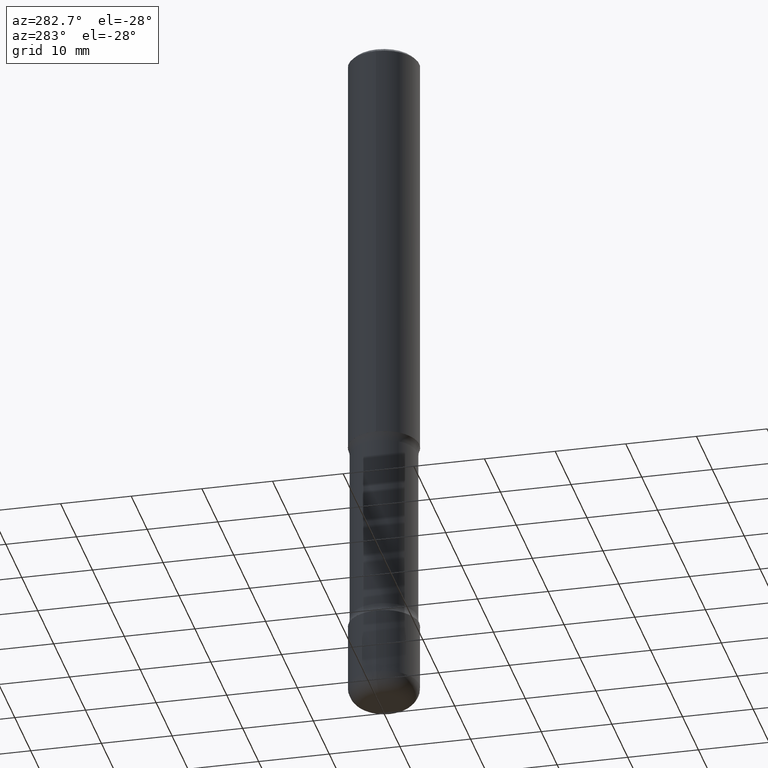
[diagram: clean part render]
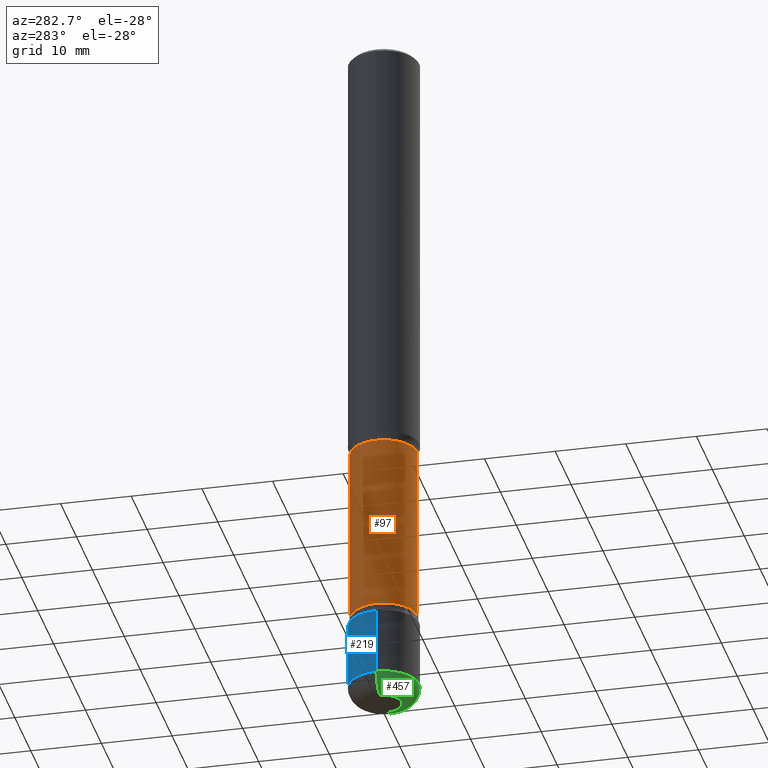
[diagram: same view with three faces highlighted in distinct colors, each labeled with its STEP entity id]
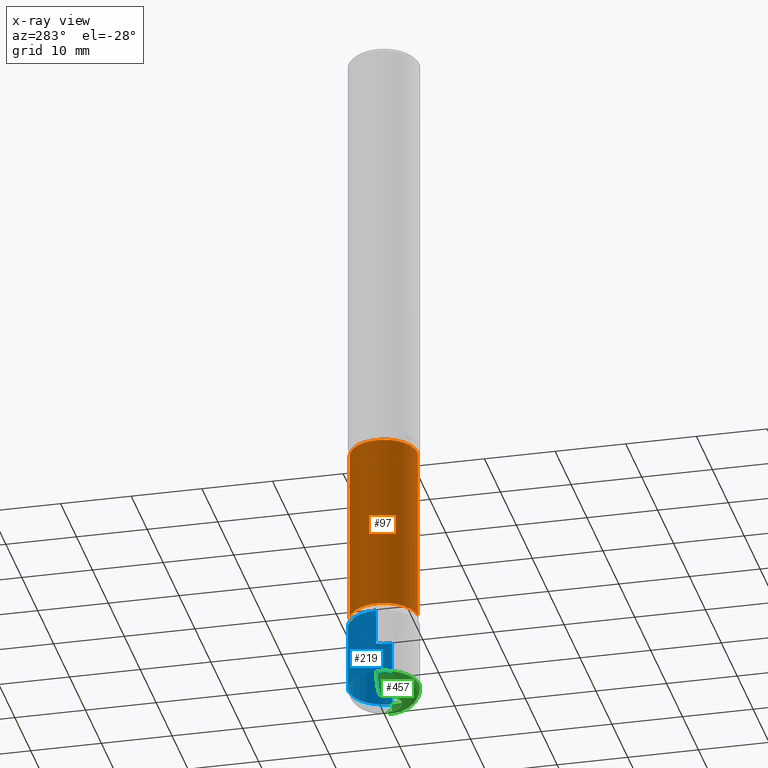
[diagram: x-ray of the same camera — body ghosted, the three highlighted faces saturated]
A machine part, auxiliary view with three faces highlighted in distinct colors.
The next image is the same camera in x-ray (body ghosted, the three faces saturated) — at least one of them is partly hidden behind the body in this view.
Their STEP definitions:

[orange] entity #97 — the highlighted cylindrical surface (edge-blend (fillet) strip) has radius 4.7498 mm, axis along (0, -0, -1).
#6 = CARTESIAN_POINT ( 'NONE',  ( 1.305814020727415620E-15, 0.1869999999999880924, -3.415963825191532521 ) ) ;
#15 = CARTESIAN_POINT ( 'NONE',  ( 1.305814020727390377E-15, 0.1869999999999915341, -2.410836174808471455 ) ) ;
#22 = CARTESIAN_POINT ( 'NONE',  ( -1.316701078222246809E-15, -0.1870000000000088813, -2.410836174808470567 ) ) ;
#33 = EDGE_LOOP ( 'NONE', ( #310, #305, #434, #50 ) ) ;
#50 = ORIENTED_EDGE ( 'NONE', *, *, #304, .F. ) ;
#94 = DIRECTION ( 'NONE',  ( 6.982962677686266711E-15, 1.000000000000000000, -2.921762560068729806E-15 ) ) ;
#97 = ADVANCED_FACE ( 'NONE', ( #282 ), #151, .T. ) ;
#102 = AXIS2_PLACEMENT_3D ( 'NONE', #277, #418, #319 ) ;
#110 = DIRECTION ( 'NONE',  ( 2.620889282446383185E-29, -3.240269232523581650E-15, -1.000000000000000000 ) ) ;
#111 = CARTESIAN_POINT ( 'NONE',  ( 9.710679322936699330E-29, -1.362728943200010467E-14, -3.937000000000001165 ) ) ;
#128 = AXIS2_PLACEMENT_3D ( 'NONE', #186, #110, #94 ) ;
#130 = VERTEX_POINT ( 'NONE', #22 ) ;
#151 = CYLINDRICAL_SURFACE ( 'NONE', #541, 0.1870000000000001106 ) ;
#165 = VERTEX_POINT ( 'NONE', #451 ) ;
#186 = CARTESIAN_POINT ( 'NONE',  ( 8.345101196614320923E-29, -1.193899194573644426E-14, -3.415963825191531633 ) ) ;
#190 = DIRECTION ( 'NONE',  ( 2.620889282446383185E-29, -3.240269232523582044E-15, -1.000000000000000000 ) ) ;
#238 = EDGE_CURVE ( 'NONE', #428, #475, #526, .T. ) ;
#246 = CARTESIAN_POINT ( 'NONE',  ( -1.282913125583180022E-15, -0.1870000000000137386, -3.937000000000000721 ) ) ;
#258 = VECTOR ( 'NONE', #190, 39.37007874015748143 ) ;
#277 = CARTESIAN_POINT ( 'NONE',  ( 5.710772910234841729E-29, -8.682107745441492905E-15, -2.410836174808471011 ) ) ;
#282 = FACE_OUTER_BOUND ( 'NONE', #33, .T. ) ;
#304 = EDGE_CURVE ( 'NONE', #165, #475, #374, .T. ) ;
#305 = ORIENTED_EDGE ( 'NONE', *, *, #394, .T. ) ;
#310 = ORIENTED_EDGE ( 'NONE', *, *, #505, .F. ) ;
#315 = DIRECTION ( 'NONE',  ( 6.982962677686266711E-15, 1.000000000000000000, -2.921762560068729017E-15 ) ) ;
#319 = DIRECTION ( 'NONE',  ( 6.982962677686266711E-15, 1.000000000000000000, -2.921762560068727439E-15 ) ) ;
#320 = CARTESIAN_POINT ( 'NONE',  ( 1.305814020727429623E-15, 0.1869999999999864826, -3.937000000000001609 ) ) ;
#329 = DIRECTION ( 'NONE',  ( 2.620889282446383185E-29, -3.240269232523581650E-15, -1.000000000000000000 ) ) ;
#345 = CIRCLE ( 'NONE', #102, 0.1870000000000002216 ) ;
#369 = DIRECTION ( 'NONE',  ( 2.620889282446383185E-29, -3.240269232523582044E-15, -1.000000000000000000 ) ) ;
#374 = CIRCLE ( 'NONE', #128, 0.1870000000000000551 ) ;
#394 = EDGE_CURVE ( 'NONE', #130, #428, #345, .T. ) ;
#418 = DIRECTION ( 'NONE',  ( 2.620889282446383185E-29, -3.240269232523581650E-15, -1.000000000000000000 ) ) ;
#424 = VECTOR ( 'NONE', #369, 39.37007874015748143 ) ;
#428 = VERTEX_POINT ( 'NONE', #15 ) ;
#434 = ORIENTED_EDGE ( 'NONE', *, *, #238, .T. ) ;
#446 = LINE ( 'NONE', #246, #424 ) ;
#451 = CARTESIAN_POINT ( 'NONE',  ( -1.316701078222217030E-15, -0.1870000000000119900, -3.415963825191531189 ) ) ;
#475 = VERTEX_POINT ( 'NONE', #6 ) ;
#505 = EDGE_CURVE ( 'NONE', #130, #165, #446, .T. ) ;
#526 = LINE ( 'NONE', #320, #258 ) ;
#541 = AXIS2_PLACEMENT_3D ( 'NONE', #111, #329, #315 ) ;

[blue] entity #219 — the highlighted cylindrical surface (edge-blend (fillet) strip) has radius 5 mm, axis along (-0, 0, 1).
#28 = DIRECTION ( 'NONE',  ( -2.445468806185136597E-29, 3.491481338843145583E-15, 1.000000000000000000 ) ) ;
#55 = VERTEX_POINT ( 'NONE', #459 ) ;
#56 = DIRECTION ( 'NONE',  ( -2.445468806185136597E-29, 3.491481338843145583E-15, 1.000000000000000000 ) ) ;
#61 = VERTEX_POINT ( 'NONE', #66 ) ;
#63 = DIRECTION ( 'NONE',  ( 1.000000000000000000, -6.982962677686266711E-15, 4.876176775795935793E-29 ) ) ;
#66 = CARTESIAN_POINT ( 'NONE',  ( 0.1968500000000002470, -1.477699647038584208E-14, -3.838600000000000012 ) ) ;
#74 = EDGE_CURVE ( 'NONE', #61, #252, #531, .T. ) ;
#100 = LINE ( 'NONE', #362, #328 ) ;
#148 = DIRECTION ( 'NONE',  ( -2.445468806185136877E-29, 3.491481338843145188E-15, 1.000000000000000000 ) ) ;
#193 = DIRECTION ( 'NONE',  ( 1.000000000000000000, -6.982962677686272233E-15, 0.000000000000000000 ) ) ;
#194 = EDGE_CURVE ( 'NONE', #558, #55, #414, .T. ) ;
#198 = DIRECTION ( 'NONE',  ( 1.000000000000000000, -6.982962677686263555E-15, 0.000000000000000000 ) ) ;
#214 = CARTESIAN_POINT ( 'NONE',  ( 0.000000000000000000, 0.000000000000000000, 0.000000000000000000 ) ) ;
#219 = ADVANCED_FACE ( 'NONE', ( #386 ), #346, .T. ) ;
#231 = AXIS2_PLACEMENT_3D ( 'NONE', #214, #56, #63 ) ;
#252 = VERTEX_POINT ( 'NONE', #407 ) ;
#270 = ORIENTED_EDGE ( 'NONE', *, *, #194, .F. ) ;
#273 = AXIS2_PLACEMENT_3D ( 'NONE', #538, #413, #198 ) ;
#294 = EDGE_LOOP ( 'NONE', ( #484, #506, #270, #514 ) ) ;
#309 = LINE ( 'NONE', #358, #354 ) ;
#328 = VECTOR ( 'NONE', #404, 39.37007874015748143 ) ;
#331 = CARTESIAN_POINT ( 'NONE',  ( 0.1968500000000001360, -1.347118244965850850E-14, -3.464600000000001234 ) ) ;
#335 = AXIS2_PLACEMENT_3D ( 'NONE', #410, #28, #193 ) ;
#346 = CYLINDRICAL_SURFACE ( 'NONE', #231, 0.1968500000000001915 ) ;
#354 = VECTOR ( 'NONE', #148, 39.37007874015748143 ) ;
#358 = CARTESIAN_POINT ( 'NONE',  ( 0.1968500000000001915, -1.374596203102542989E-15, 9.598753983154309266E-30 ) ) ;
#362 = CARTESIAN_POINT ( 'NONE',  ( -0.1968500000000001915, 1.398703375343758577E-15, -9.682923725166790684E-30 ) ) ;
#386 = FACE_OUTER_BOUND ( 'NONE', #294, .T. ) ;
#404 = DIRECTION ( 'NONE',  ( -2.445468806185136877E-29, 3.491481338843145188E-15, 1.000000000000000000 ) ) ;
#407 = CARTESIAN_POINT ( 'NONE',  ( -0.1968500000000002470, -1.200369689193953874E-14, -3.838600000000000012 ) ) ;
#410 = CARTESIAN_POINT ( 'NONE',  ( 9.387176559422264284E-29, -1.340240026728329889E-14, -3.838600000000000012 ) ) ;
#413 = DIRECTION ( 'NONE',  ( -2.445468806185136597E-29, 3.491481338843145583E-15, 1.000000000000000000 ) ) ;
#414 = CIRCLE ( 'NONE', #273, 0.1968500000000001360 ) ;
#459 = CARTESIAN_POINT ( 'NONE',  ( -0.1968500000000001360, -1.135078988157587274E-14, -3.464600000000001234 ) ) ;
#469 = EDGE_CURVE ( 'NONE', #252, #55, #100, .T. ) ;
#484 = ORIENTED_EDGE ( 'NONE', *, *, #74, .T. ) ;
#501 = EDGE_CURVE ( 'NONE', #61, #558, #309, .T. ) ;
#506 = ORIENTED_EDGE ( 'NONE', *, *, #469, .T. ) ;
#514 = ORIENTED_EDGE ( 'NONE', *, *, #501, .F. ) ;
#531 = CIRCLE ( 'NONE', #335, 0.1968500000000001915 ) ;
#538 = CARTESIAN_POINT ( 'NONE',  ( 8.472571225909027026E-29, -1.209658624655596689E-14, -3.464600000000001234 ) ) ;
#558 = VERTEX_POINT ( 'NONE', #331 ) ;

[green] entity #457 — the highlighted toroidal blend (fillet) surface has major radius 2.5006 mm and minor (blend) radius 2.4994 mm.
#10 = AXIS2_PLACEMENT_3D ( 'NONE', #240, #72, #417 ) ;
#19 = DIRECTION ( 'NONE',  ( 1.000000000000000000, -6.982962677686266711E-15, 4.883557194083112340E-29 ) ) ;
#49 = TOROIDAL_SURFACE ( 'NONE', #405, 0.09845000000000023177, 0.09840000000000009850 ) ;
#61 = VERTEX_POINT ( 'NONE', #66 ) ;
#62 = DIRECTION ( 'NONE',  ( 7.105427357601001859E-15, 1.000000000000000000, -3.491481338843145583E-15 ) ) ;
#64 = CARTESIAN_POINT ( 'NONE',  ( 9.387176559422264284E-29, -1.340240026728329889E-14, -3.838600000000000012 ) ) ;
#66 = CARTESIAN_POINT ( 'NONE',  ( 0.1968500000000002470, -1.477699647038584208E-14, -3.838600000000000012 ) ) ;
#72 = DIRECTION ( 'NONE',  ( -2.445468806185136597E-29, 3.491481338843145583E-15, 1.000000000000000000 ) ) ;
#80 = ORIENTED_EDGE ( 'NONE', *, *, #159, .F. ) ;
#85 = EDGE_CURVE ( 'NONE', #168, #220, #184, .T. ) ;
#108 = CARTESIAN_POINT ( 'NONE',  ( -0.09845000000000021789, -1.252506479980459281E-14, -3.937000000000000277 ) ) ;
#139 = ORIENTED_EDGE ( 'NONE', *, *, #511, .F. ) ;
#150 = DIRECTION ( 'NONE',  ( -6.982962677686266711E-15, -1.000000000000000000, 3.491481338843145583E-15 ) ) ;
#159 = EDGE_CURVE ( 'NONE', #252, #61, #431, .T. ) ;
#164 = CIRCLE ( 'NONE', #297, 0.09840000000000008462 ) ;
#168 = VERTEX_POINT ( 'NONE', #108 ) ;
#184 = CIRCLE ( 'NONE', #10, 0.09845000000000021789 ) ;
#192 = DIRECTION ( 'NONE',  ( 1.000000000000000000, -6.982962677686276177E-15, 0.000000000000000000 ) ) ;
#199 = CARTESIAN_POINT ( 'NONE',  ( 0.09845000000000021789, -1.443343470664367755E-14, -3.937000000000000277 ) ) ;
#220 = VERTEX_POINT ( 'NONE', #199 ) ;
#236 = EDGE_CURVE ( 'NONE', #220, #61, #164, .T. ) ;
#240 = CARTESIAN_POINT ( 'NONE',  ( 9.627810689950883669E-29, -1.374596203102546341E-14, -3.937000000000000277 ) ) ;
#252 = VERTEX_POINT ( 'NONE', #407 ) ;
#274 = CARTESIAN_POINT ( 'NONE',  ( 9.387176559422264284E-29, -1.340240026728329889E-14, -3.838600000000000012 ) ) ;
#297 = AXIS2_PLACEMENT_3D ( 'NONE', #367, #150, #192 ) ;
#361 = CARTESIAN_POINT ( 'NONE',  ( -0.09845000000000023177, -1.270287094392747920E-14, -3.838600000000000012 ) ) ;
#366 = CIRCLE ( 'NONE', #542, 0.09840000000000008462 ) ;
#367 = CARTESIAN_POINT ( 'NONE',  ( 0.09845000000000023177, -1.408987294290151145E-14, -3.838600000000000012 ) ) ;
#372 = DIRECTION ( 'NONE',  ( -1.000000000000000000, 7.105427357601012903E-15, 0.000000000000000000 ) ) ;
#389 = ORIENTED_EDGE ( 'NONE', *, *, #85, .T. ) ;
#399 = FACE_OUTER_BOUND ( 'NONE', #442, .T. ) ;
#405 = AXIS2_PLACEMENT_3D ( 'NONE', #274, #448, #19 ) ;
#407 = CARTESIAN_POINT ( 'NONE',  ( -0.1968500000000002470, -1.200369689193953874E-14, -3.838600000000000012 ) ) ;
#417 = DIRECTION ( 'NONE',  ( 1.000000000000000000, -6.982962677686259611E-15, 0.000000000000000000 ) ) ;
#431 = CIRCLE ( 'NONE', #462, 0.1968500000000001915 ) ;
#438 = ORIENTED_EDGE ( 'NONE', *, *, #236, .T. ) ;
#442 = EDGE_LOOP ( 'NONE', ( #139, #389, #438, #80 ) ) ;
#448 = DIRECTION ( 'NONE',  ( -2.445468806185136597E-29, 3.491481338843145583E-15, 1.000000000000000000 ) ) ;
#457 = ADVANCED_FACE ( 'NONE', ( #399 ), #49, .T. ) ;
#462 = AXIS2_PLACEMENT_3D ( 'NONE', #64, #498, #496 ) ;
#496 = DIRECTION ( 'NONE',  ( 1.000000000000000000, -6.982962677686272233E-15, 0.000000000000000000 ) ) ;
#498 = DIRECTION ( 'NONE',  ( -2.445468806185136597E-29, 3.491481338843145583E-15, 1.000000000000000000 ) ) ;
#511 = EDGE_CURVE ( 'NONE', #168, #252, #366, .T. ) ;
#542 = AXIS2_PLACEMENT_3D ( 'NONE', #361, #62, #372 ) ;